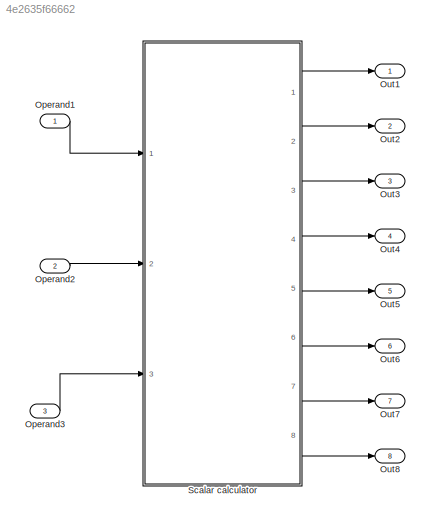
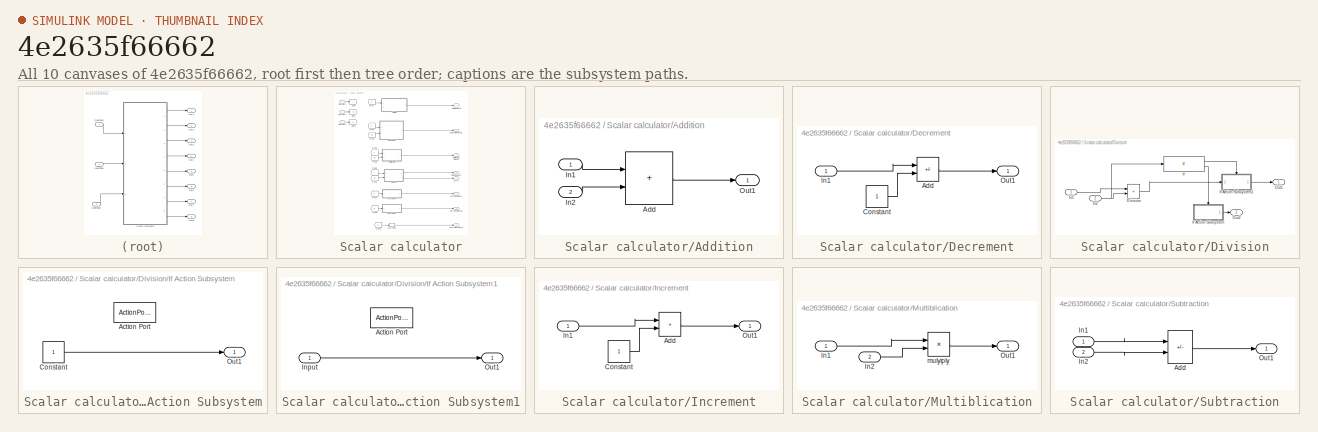
[diagram: thumbnail index - all 10 canvases of the model, root first then tree order]
MODEL slx_4e2635f66662
KIND model
CONFIG AbsTol = auto
CONFIG EnableMultiTasking = off
CONFIG FixedStep = auto
CONFIG MaxStep = auto
CONFIG MinStep = auto
CONFIG RelTol = 1e-3
CONFIG SampleTimeConstraint = Unconstrained
CONFIG SolverName = VariableStepAuto
CONFIG StartTime = 0.0
CONFIG StopTime = 10.0
BLOCK [Inport] Operand1
BLOCK [Inport] Operand2
  Port = 2
BLOCK [Inport] Operand3
  Port = 3
BLOCK [Outport] Out1
BLOCK [Outport] Out2
  Port = 2
BLOCK [Outport] Out3
  Port = 3
BLOCK [Outport] Out4
  Port = 4
BLOCK [Outport] Out5
  Port = 5
BLOCK [Outport] Out6
  Port = 6
BLOCK [Outport] Out7
  Port = 7
BLOCK [Outport] Out8
  Port = 8
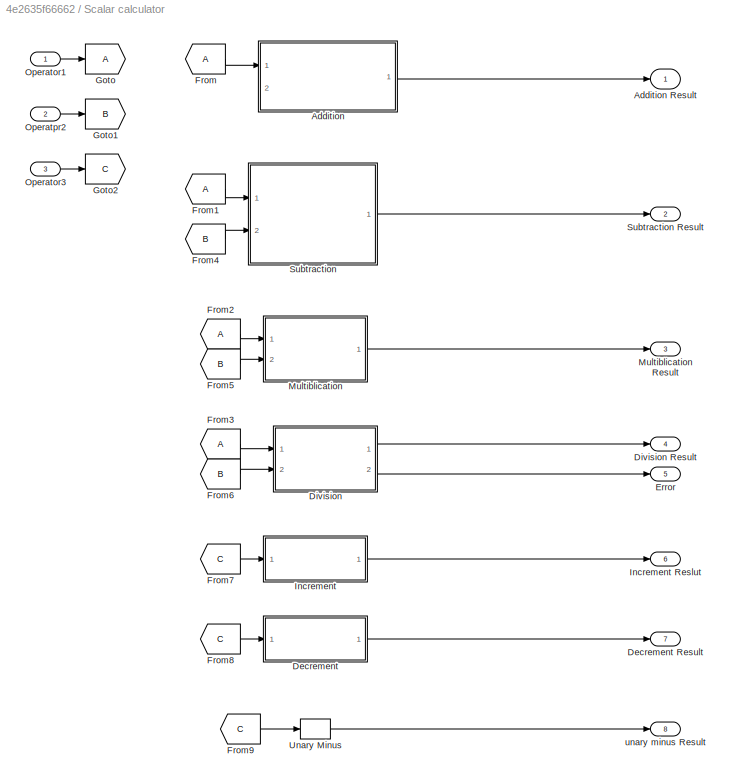
BLOCK [SubSystem] Scalar calculator
  Ports = [3, 8]
  RequestExecContextInheritance = off
BLOCK [SubSystem] Scalar calculator/Addition
  Ports = [2, 1]
  RequestExecContextInheritance = off
BLOCK [Outport] Scalar calculator/Addition Result
BLOCK [Sum] Scalar calculator/Addition/Add
  IconShape = rectangular
  Ports = [2, 1]
BLOCK [Inport] Scalar calculator/Addition/In1
BLOCK [Inport] Scalar calculator/Addition/In2
  Port = 2
BLOCK [Outport] Scalar calculator/Addition/Out1
BLOCK [SubSystem] Scalar calculator/Decrement
  Ports = [1, 1]
  RequestExecContextInheritance = off
BLOCK [Outport] Scalar calculator/Decrement Result
  Port = 7
BLOCK [Sum] Scalar calculator/Decrement/Add
  IconShape = rectangular
  Inputs = +-
  Ports = [2, 1]
BLOCK [Constant] Scalar calculator/Decrement/Constant
BLOCK [Inport] Scalar calculator/Decrement/In1
BLOCK [Outport] Scalar calculator/Decrement/Out1
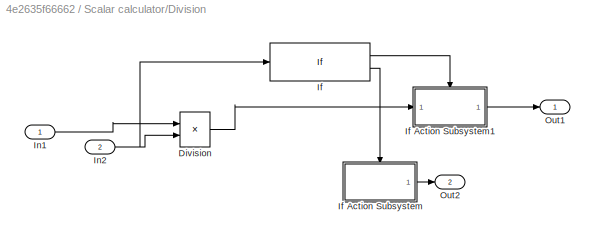
BLOCK [SubSystem] Scalar calculator/Division
  Ports = [2, 2]
  RequestExecContextInheritance = off
BLOCK [Outport] Scalar calculator/Division Result
  Port = 4
BLOCK [Product] Scalar calculator/Division/Division
  Inputs = */
  Ports = [2, 1]
BLOCK [If] Scalar calculator/Division/If
  Ports = [1, 2]
BLOCK [SubSystem] Scalar calculator/Division/If Action Subsystem
  Ports = [0, 1, 0, 0, 0, 0, 0, 1]
  RequestExecContextInheritance = off
  TreatAsAtomicUnit = on
BLOCK [ActionPort] Scalar calculator/Division/If Action Subsystem/Action Port
  ActionPortLabel = else
BLOCK [Constant] Scalar calculator/Division/If Action Subsystem/Constant
BLOCK [Outport] Scalar calculator/Division/If Action Subsystem/Out1
BLOCK [SubSystem] Scalar calculator/Division/If Action Subsystem1
  Ports = [1, 1, 0, 0, 0, 0, 0, 1]
  RequestExecContextInheritance = off
  TreatAsAtomicUnit = on
BLOCK [ActionPort] Scalar calculator/Division/If Action Subsystem1/Action Port
  ActionPortLabel = if(u1 > 0)
BLOCK [Inport] Scalar calculator/Division/If Action Subsystem1/Input
BLOCK [Outport] Scalar calculator/Division/If Action Subsystem1/Out1
BLOCK [Inport] Scalar calculator/Division/In1
BLOCK [Inport] Scalar calculator/Division/In2
  Port = 2
BLOCK [Outport] Scalar calculator/Division/Out1
BLOCK [Outport] Scalar calculator/Division/Out2
  Port = 2
BLOCK [Outport] Scalar calculator/Error
  Port = 5
BLOCK [From] Scalar calculator/From
BLOCK [From] Scalar calculator/From1
BLOCK [From] Scalar calculator/From2
BLOCK [From] Scalar calculator/From3
BLOCK [From] Scalar calculator/From4
  GotoTag = B
BLOCK [From] Scalar calculator/From5
  GotoTag = B
BLOCK [From] Scalar calculator/From6
  GotoTag = B
BLOCK [From] Scalar calculator/From7
  GotoTag = C
BLOCK [From] Scalar calculator/From8
  GotoTag = C
BLOCK [From] Scalar calculator/From9
  GotoTag = C
BLOCK [Goto] Scalar calculator/Goto
BLOCK [Goto] Scalar calculator/Goto1
  GotoTag = B
BLOCK [Goto] Scalar calculator/Goto2
  GotoTag = C
BLOCK [SubSystem] Scalar calculator/Increment
  Ports = [1, 1]
  RequestExecContextInheritance = off
BLOCK [Outport] Scalar calculator/Increment Reslut
  Port = 6
BLOCK [Sum] Scalar calculator/Increment/Add
  IconShape = rectangular
  Ports = [2, 1]
BLOCK [Constant] Scalar calculator/Increment/Constant
BLOCK [Inport] Scalar calculator/Increment/In1
BLOCK [Outport] Scalar calculator/Increment/Out1
BLOCK [SubSystem] Scalar calculator/Multiblication
  Ports = [2, 1]
  RequestExecContextInheritance = off
BLOCK [Outport] Scalar calculator/Multiblication Result
  Port = 3
BLOCK [Inport] Scalar calculator/Multiblication/In1
BLOCK [Inport] Scalar calculator/Multiblication/In2
  Port = 2
BLOCK [Outport] Scalar calculator/Multiblication/Out1
BLOCK [Product] Scalar calculator/Multiblication/mulyiply
  Inputs = **
  Ports = [2, 1]
BLOCK [Inport] Scalar calculator/Operator1
BLOCK [Inport] Scalar calculator/Operator3
  Port = 3
BLOCK [Inport] Scalar calculator/Operatpr2
  Port = 2
BLOCK [SubSystem] Scalar calculator/Subtraction
  Ports = [2, 1]
  RequestExecContextInheritance = off
BLOCK [Outport] Scalar calculator/Subtraction Result
  Port = 2
BLOCK [Sum] Scalar calculator/Subtraction/Add
  IconShape = rectangular
  Inputs = +-
  Ports = [2, 1]
BLOCK [Inport] Scalar calculator/Subtraction/In1
BLOCK [Inport] Scalar calculator/Subtraction/In2
  Port = 2
BLOCK [Outport] Scalar calculator/Subtraction/Out1
BLOCK [UnaryMinus] Scalar calculator/Unary Minus
BLOCK [Outport] Scalar calculator/unary minus Result
  Port = 8
LINE Operand1:1 -> Scalar calculator:1
LINE Operand2:1 -> Scalar calculator:2
LINE Operand3:1 -> Scalar calculator:3
LINE Scalar calculator/Addition/Add:1 -> Scalar calculator/Addition/Out1:1
LINE Scalar calculator/Addition/In1:1 -> Scalar calculator/Addition/Add:1
LINE Scalar calculator/Addition/In2:1 -> Scalar calculator/Addition/Add:2
LINE Scalar calculator/Addition:1 -> Scalar calculator/Addition Result:1
LINE Scalar calculator/Decrement/Add:1 -> Scalar calculator/Decrement/Out1:1
LINE Scalar calculator/Decrement/Constant:1 -> Scalar calculator/Decrement/Add:2
LINE Scalar calculator/Decrement/In1:1 -> Scalar calculator/Decrement/Add:1
LINE Scalar calculator/Decrement:1 -> Scalar calculator/Decrement Result:1
LINE Scalar calculator/Division/Division:1 -> Scalar calculator/Division/If Action Subsystem1:1
LINE Scalar calculator/Division/If Action Subsystem/Constant:1 -> Scalar calculator/Division/If Action Subsystem/Out1:1
LINE Scalar calculator/Division/If Action Subsystem1/Input:1 -> Scalar calculator/Division/If Action Subsystem1/Out1:1
LINE Scalar calculator/Division/If Action Subsystem1:1 -> Scalar calculator/Division/Out1:1
LINE Scalar calculator/Division/If Action Subsystem:1 -> Scalar calculator/Division/Out2:1
LINE Scalar calculator/Division/If:1 -> Scalar calculator/Division/If Action Subsystem1:ifaction
LINE Scalar calculator/Division/If:2 -> Scalar calculator/Division/If Action Subsystem:ifaction
LINE Scalar calculator/Division/In1:1 -> Scalar calculator/Division/Division:1
NET Scalar calculator/Division/In2:1 -> Scalar calculator/Division/Division:2, Scalar calculator/Division/If:1
LINE Scalar calculator/Division:1 -> Scalar calculator/Division Result:1
LINE Scalar calculator/Division:2 -> Scalar calculator/Error:1
LINE Scalar calculator/From1:1 -> Scalar calculator/Subtraction:1
LINE Scalar calculator/From2:1 -> Scalar calculator/Multiblication:1
LINE Scalar calculator/From3:1 -> Scalar calculator/Division:1
LINE Scalar calculator/From4:1 -> Scalar calculator/Subtraction:2
LINE Scalar calculator/From5:1 -> Scalar calculator/Multiblication:2
LINE Scalar calculator/From6:1 -> Scalar calculator/Division:2
LINE Scalar calculator/From7:1 -> Scalar calculator/Increment:1
LINE Scalar calculator/From8:1 -> Scalar calculator/Decrement:1
LINE Scalar calculator/From9:1 -> Scalar calculator/Unary Minus:1
LINE Scalar calculator/From:1 -> Scalar calculator/Addition:1
LINE Scalar calculator/Increment/Add:1 -> Scalar calculator/Increment/Out1:1
LINE Scalar calculator/Increment/Constant:1 -> Scalar calculator/Increment/Add:2
LINE Scalar calculator/Increment/In1:1 -> Scalar calculator/Increment/Add:1
LINE Scalar calculator/Increment:1 -> Scalar calculator/Increment Reslut:1
LINE Scalar calculator/Multiblication/In1:1 -> Scalar calculator/Multiblication/mulyiply:1
LINE Scalar calculator/Multiblication/In2:1 -> Scalar calculator/Multiblication/mulyiply:2
LINE Scalar calculator/Multiblication/mulyiply:1 -> Scalar calculator/Multiblication/Out1:1
LINE Scalar calculator/Multiblication:1 -> Scalar calculator/Multiblication Result:1
LINE Scalar calculator/Operator1:1 -> Scalar calculator/Goto:1
LINE Scalar calculator/Operator3:1 -> Scalar calculator/Goto2:1
LINE Scalar calculator/Operatpr2:1 -> Scalar calculator/Goto1:1
LINE Scalar calculator/Subtraction/Add:1 -> Scalar calculator/Subtraction/Out1:1
LINE Scalar calculator/Subtraction/In1:1 -> Scalar calculator/Subtraction/Add:1
LINE Scalar calculator/Subtraction/In2:1 -> Scalar calculator/Subtraction/Add:2
LINE Scalar calculator/Subtraction:1 -> Scalar calculator/Subtraction Result:1
LINE Scalar calculator/Unary Minus:1 -> Scalar calculator/unary minus Result:1
LINE Scalar calculator:1 -> Out1:1
LINE Scalar calculator:2 -> Out2:1
LINE Scalar calculator:3 -> Out3:1
LINE Scalar calculator:4 -> Out4:1
LINE Scalar calculator:5 -> Out5:1
LINE Scalar calculator:6 -> Out6:1
LINE Scalar calculator:7 -> Out7:1
LINE Scalar calculator:8 -> Out8:1
note: NET lines group one-source signal fan-out (src -> all destinations, sorted); 1:1 wires keep LINE
